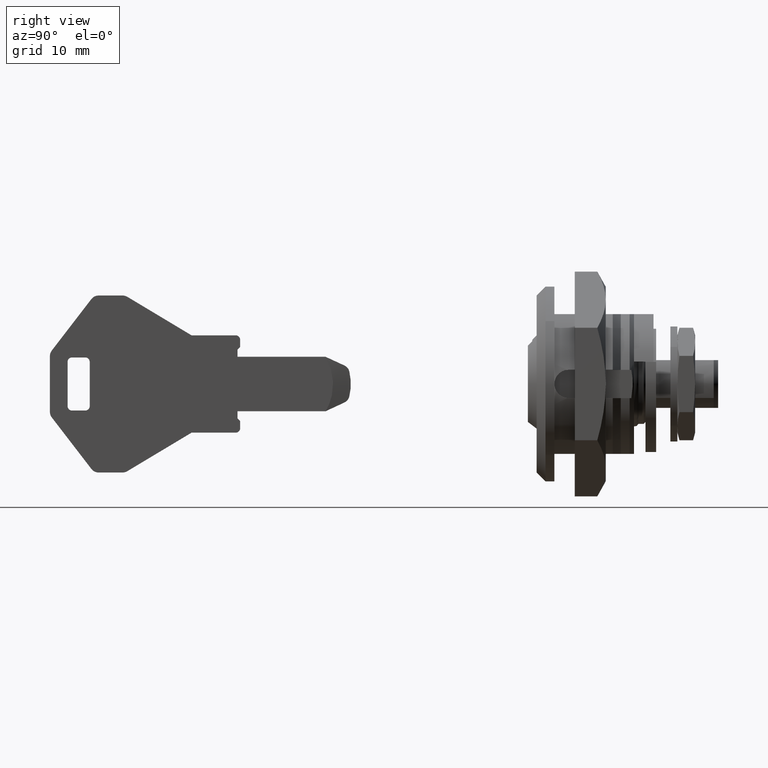
[diagram: clean part render]
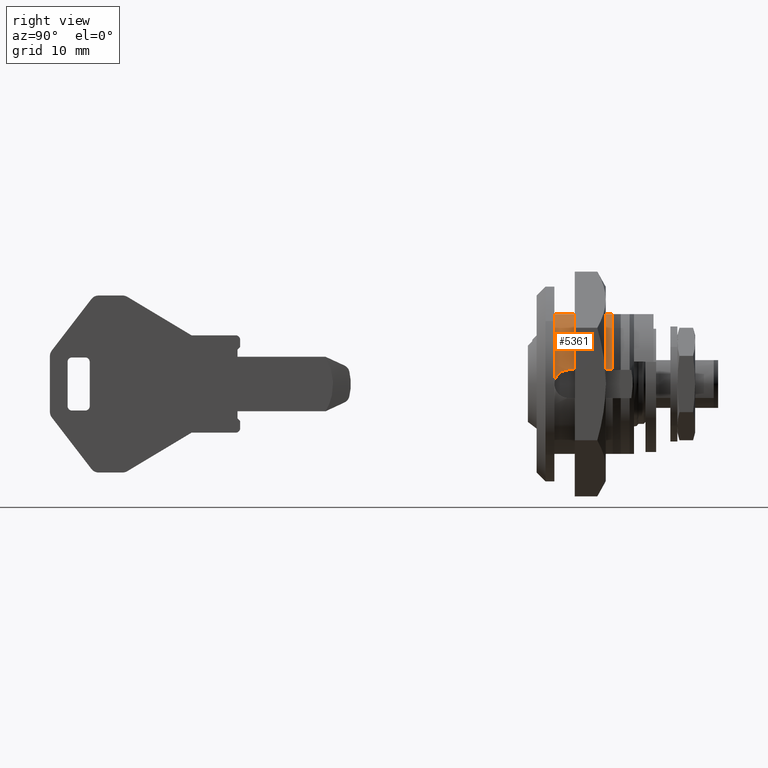
[diagram: same view with one face highlighted and labeled with its STEP entity id]
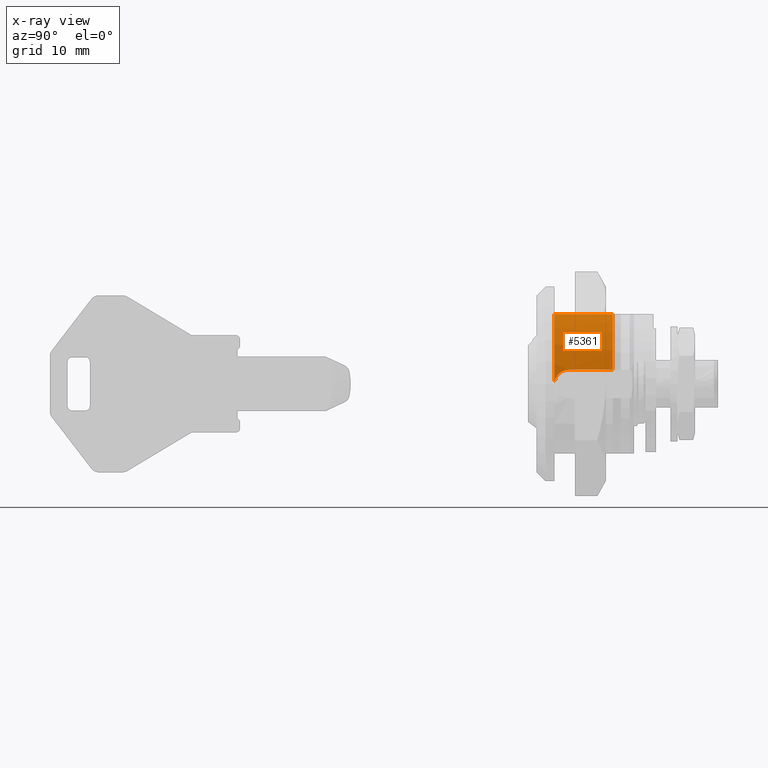
[diagram: x-ray of the same camera — body ghosted, the highlighted face saturated]
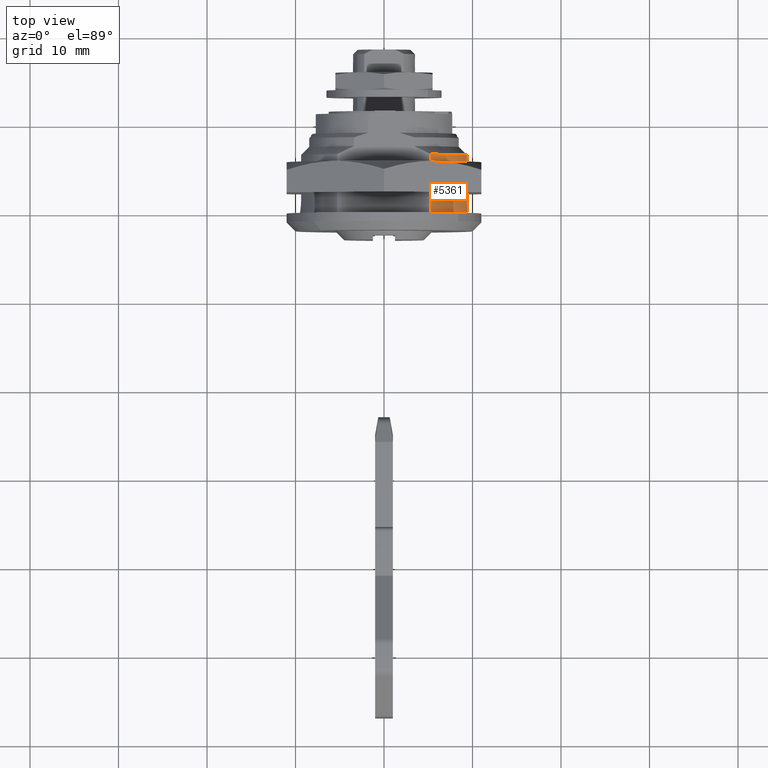
[diagram: same view with one face highlighted and labeled with its STEP entity id]
A machine part, right view. The second image highlights one B-rep face of the part: STEP entity #5361.
The next image is the same camera in x-ray: the body ghosted, the highlighted face saturated — about 0% of this face is hidden behind the body in this view.
A second angle (top view) of the same face is appended — the face is thin or edge-on in the first view.
In plain terms, the highlighted face is a freeform B-spline surface patch.
Its self-contained STEP definition (entity closure, byte-faithful):
#3442=CARTESIAN_POINT('',(1.600000000000000,-9.364293886887570,1.600000000000000));
#3443=VERTEX_POINT('',#3442);
#3444=CARTESIAN_POINT('',(-1.163376E-015,-9.500000000000000,0.0));
#3445=VERTEX_POINT('',#3444);
#3446=CARTESIAN_POINT('',(1.600000000000000,-9.364293886887570,1.600000000000000));
#3447=CARTESIAN_POINT('',(1.494107168867779,-9.364293886887570,1.600000000000001));
#3448=CARTESIAN_POINT('',(1.390022099711914,-9.366089117432708,1.589591566376543));
#3449=CARTESIAN_POINT('',(1.236486233636503,-9.371207281754378,1.559031993991923));
#3450=CARTESIAN_POINT('',(1.185742727413384,-9.373317728909596,1.546335632635889));
#3451=CARTESIAN_POINT('',(1.085143478846430,-9.378302266219317,1.515811907617822));
#3452=CARTESIAN_POINT('',(1.035192436438114,-9.381187234835972,1.497911748357533));
#3453=CARTESIAN_POINT('',(0.889958470461108,-9.390677524994695,1.437647309052888));
#3454=CARTESIAN_POINT('',(0.798144274657230,-9.398164266091369,1.388504223553180));
#3455=CARTESIAN_POINT('',(0.667821843206732,-9.410477451120396,1.301450356244911));
#3456=CARTESIAN_POINT('',(0.625438416735945,-9.414782900063907,1.270037691326519));
#3457=CARTESIAN_POINT('',(0.544138474427342,-9.423545528989937,1.203296495374068));
#3458=CARTESIAN_POINT('',(0.505433095820449,-9.427976473443660,1.168175944922799));
#3459=CARTESIAN_POINT('',(0.394968277321913,-9.441226411700360,1.057707677681031));
#3460=CARTESIAN_POINT('',(0.328804957268779,-9.450004413469895,0.977303388483830));
#3461=CARTESIAN_POINT('',(0.241070524251162,-9.462338556854910,0.846212365421706));
#3462=CARTESIAN_POINT('',(0.213889808654311,-9.466293184527613,0.800894464947833));
#3463=CARTESIAN_POINT('',(0.164562033751627,-9.473641715192148,0.708696868618165));
#3464=CARTESIAN_POINT('',(0.119956704491005,-9.480473117907932,0.614488151844578));
#3465=CARTESIAN_POINT('',(0.084682982993855,-9.486092912747589,0.516293239062276));
#3466=CARTESIAN_POINT('',(0.054155957468509,-9.491017168411496,0.416065580046844));
#3467=CARTESIAN_POINT('',(0.041214034582731,-9.493140178585815,0.364636614762560));
#3468=CARTESIAN_POINT('',(0.010307596972758,-9.498247680147980,0.209695615087325));
#3469=CARTESIAN_POINT('',(0.000081131740807,-9.499986335710755,0.105772858585904));
#3470=CARTESIAN_POINT('',(0.000000158746895,-9.499999973263677,0.000822985040173));
#3471=CARTESIAN_POINT('',(-4.074278E-010,-9.500000000003828,0.000411497323651));
#3472=CARTESIAN_POINT('',(-1.163376E-015,-9.500000000000000,0.0));
#3473=B_SPLINE_CURVE_WITH_KNOTS('',3,(#3446,#3447,#3448,#3449,#3450,#3451,#3452,#3453,#3454,#3455,#3456,#3457,#3458,#3459,#3460,#3461,#3462,#3463,#3464,#3465,#3466,#3467,#3468,#3469,#3470,#3471,#3472),.UNSPECIFIED.,.F.,.U.,(4,2,2,2,2,2,2,2,2,1,2,2,2,4),(0.0,0.062500000000000,0.093750000000000,0.125000000000000,0.187500000000000,0.218750000000000,0.250000000000000,0.312500000000000,0.343750000000000,0.375000000000000,0.406250000000000,0.437500000000000,0.500000000000000,0.500246008960457),.UNSPECIFIED.);
#3474=EDGE_CURVE('',#3443,#3445,#3473,.T.);
#3613=CARTESIAN_POINT('',(6.600000000000000,-9.364293886887580,1.600000000000000));
#3614=VERTEX_POINT('',#3613);
#3620=CARTESIAN_POINT('',(6.600000000000000,-9.364293886887580,1.600000000000000));
#3621=CARTESIAN_POINT('',(1.600000000000000,-9.364293886887570,1.600000000000000));
#3622=QUASI_UNIFORM_CURVE('',1,(#3620,#3621),.UNSPECIFIED.,.F.,.U.);
#3623=EDGE_CURVE('',#3614,#3443,#3622,.T.);
#3985=CARTESIAN_POINT('',(0.0,-5.276362383309420,7.899999999999889));
#3986=VERTEX_POINT('',#3985);
#3987=CARTESIAN_POINT('',(6.600000000000000,-5.276362383309330,7.899999999999889));
#3988=VERTEX_POINT('',#3987);
#3989=CARTESIAN_POINT('',(0.0,-5.276362383309420,7.899999999999889));
#3990=CARTESIAN_POINT('',(6.600000000000000,-5.276362383309330,7.899999999999889));
#3991=QUASI_UNIFORM_CURVE('',1,(#3989,#3990),.UNSPECIFIED.,.F.,.U.);
#3992=EDGE_CURVE('',#3986,#3988,#3991,.T.);
#4621=CARTESIAN_POINT('',(-1.163376E-015,-9.500000000000000,0.0));
#4622=CARTESIAN_POINT('',(-1.163426E-015,-9.500180403130955,0.777388522970584));
#4623=CARTESIAN_POINT('',(-1.118770E-015,-9.338056106716644,2.089110886421716));
#4624=CARTESIAN_POINT('',(-9.404008E-016,-8.690488402998842,3.980473400225141));
#4625=CARTESIAN_POINT('',(-7.257716E-016,-7.911276766787096,5.336194780969858));
#4626=CARTESIAN_POINT('',(-4.128951E-016,-6.775378355614978,6.732901066913449));
#4627=CARTESIAN_POINT('',(-1.780986E-016,-5.922949427743429,7.468405893804172));
#4628=CARTESIAN_POINT('',(0.0,-5.276362383309420,7.899999999999889));
#4629=B_SPLINE_CURVE_WITH_KNOTS('',3,(#4621,#4622,#4623,#4624,#4625,#4626,#4627,#4628),.UNSPECIFIED.,.F.,.U.,(4,1,1,1,1,4),(0.000000018095390,2.332141147622497,3.935499717889487,5.976099104372186,6.996423406676627,9.328564536203619),.UNSPECIFIED.);
#4630=EDGE_CURVE('',#3445,#3986,#4629,.T.);
#5331=CARTESIAN_POINT('',(6.765000000000000,-5.006639713573369,8.073633554879113));
#5332=CARTESIAN_POINT('',(-0.169125000000001,-5.006639713573369,8.073633554879113));
#5333=CARTESIAN_POINT('',(6.764999999999999,-9.751345819636160,5.131335782955561));
#5334=CARTESIAN_POINT('',(-0.169125000000001,-9.751345819636160,5.131335782955561));
#5335=CARTESIAN_POINT('',(6.765000000000002,-9.489549636681799,-0.445474682728777));
#5336=CARTESIAN_POINT('',(-0.169125000000001,-9.489549636681799,-0.445474682728777));
#5344=(BOUNDED_SURFACE()B_SPLINE_SURFACE(1,2,((#5331,#5333,#5335),(#5332,#5334,#5336)),.UNSPECIFIED.,.F.,.F.,.U.)B_SPLINE_SURFACE_WITH_KNOTS((2,2),(3,3),(0.0,6.934125000000001),(0.0,10.339280853149781),.UNSPECIFIED.)GEOMETRIC_REPRESENTATION_ITEM()RATIONAL_B_SPLINE_SURFACE(((1.0,0.861905704306994,0.999448017653837),(1.0,0.861905704306994,0.999448017653837)))REPRESENTATION_ITEM('')SURFACE());
#5345=ORIENTED_EDGE('',*,*,#3623,.F.);
#5346=CARTESIAN_POINT('',(6.600000000000000,-9.364293886887580,1.600000000000000));
#5347=CARTESIAN_POINT('',(6.599999999999990,-9.249266344901972,2.273876992151831));
#5348=CARTESIAN_POINT('',(6.600000000000037,-8.928120153788949,3.402019712855302));
#5349=CARTESIAN_POINT('',(6.599999999999959,-8.156216283556073,4.954925707704675));
#5350=CARTESIAN_POINT('',(6.600000000000081,-7.043937162258620,6.492215804706578));
#5351=CARTESIAN_POINT('',(6.599999999999925,-5.978785925947518,7.431199230783895));
#5352=CARTESIAN_POINT('',(6.600000000000000,-5.276362383309330,7.899999999999889));
#5353=B_SPLINE_CURVE_WITH_KNOTS('',3,(#5346,#5347,#5348,#5349,#5350,#5351,#5352),.UNSPECIFIED.,.F.,.U.,(4,1,1,1,4),(0.000000032671007,2.050854993401976,3.498539410780448,5.187452600480205,7.720862530099423),.UNSPECIFIED.);
#5354=EDGE_CURVE('',#3614,#3988,#5353,.T.);
#5355=ORIENTED_EDGE('',*,*,#5354,.T.);
#5356=ORIENTED_EDGE('',*,*,#3992,.F.);
#5357=ORIENTED_EDGE('',*,*,#4630,.F.);
#5358=ORIENTED_EDGE('',*,*,#3474,.F.);
#5359=EDGE_LOOP('',(#5345,#5355,#5356,#5357,#5358));
#5360=FACE_OUTER_BOUND('',#5359,.T.);
#5361=ADVANCED_FACE('',(#5360),#5344,.T.);